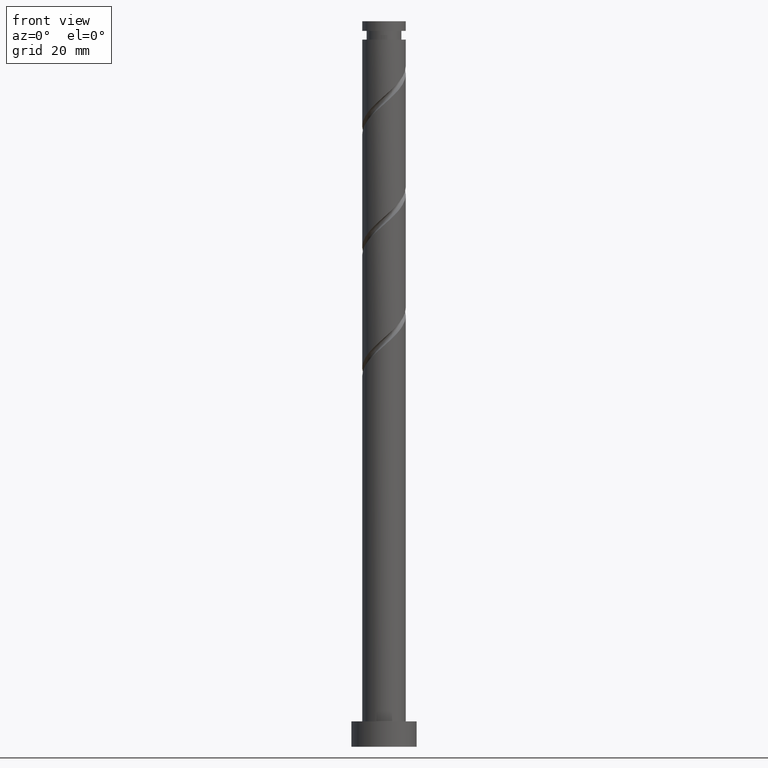
[diagram: clean part render]
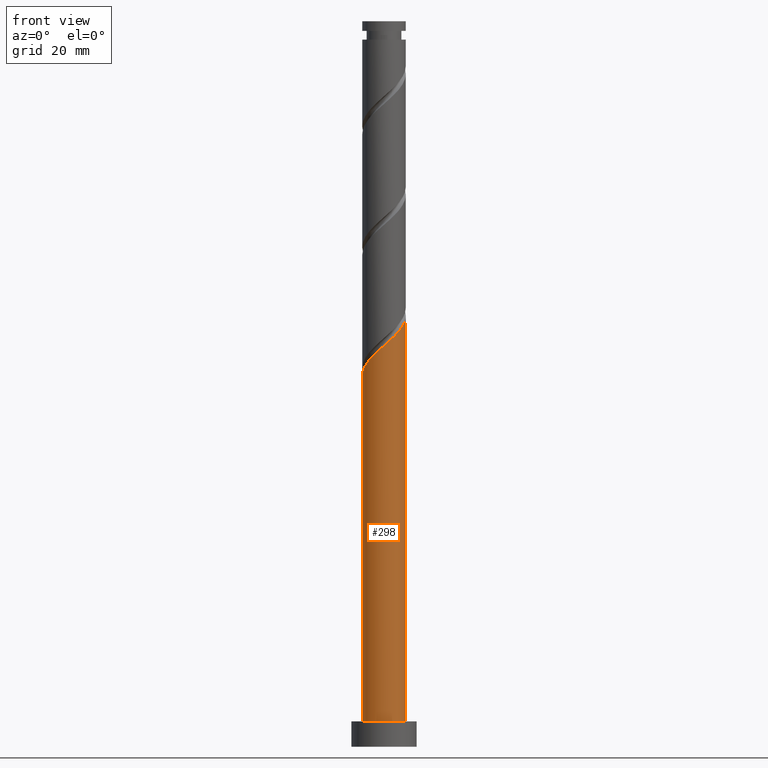
[diagram: same view with one face highlighted and labeled with its STEP entity id]
A machine part, front view. The second image highlights one B-rep face of the part: STEP entity #298.
In plain terms, the highlighted cylindrical surface (edge-blend (fillet) strip) has radius 6 mm, axis along (-0, -0, -1).
Its self-contained STEP definition (entity closure, byte-faithful):
#44 = CARTESIAN_POINT ( 'NONE',  ( 6.000000000000011546, -5.981513777448050751E-17, 118.8680557550443240 ) ) ;
#64 = DIRECTION ( 'NONE',  ( 1.000000000000000000, 0.000000000000000000, 0.000000000000000000 ) ) ;
#90 = CARTESIAN_POINT ( 'NONE',  ( -4.495236911988534700, -3.974021276376850764, 106.0427335213654914 ) ) ;
#126 = CARTESIAN_POINT ( 'NONE',  ( -6.000000000000010658, -0.6030226891555259261, 102.7348154575669099 ) ) ;
#130 = ORIENTED_EDGE ( 'NONE', *, *, #374, .T. ) ;
#152 = DIRECTION ( 'NONE',  ( -0.000000000000000000, -0.000000000000000000, -1.000000000000000000 ) ) ;
#153 = CARTESIAN_POINT ( 'NONE',  ( 6.000000000000000888, 7.347880794884120722E-16, 7.000000000000000000 ) ) ;
#160 = CIRCLE ( 'NONE', #1707, 6.000000000000000888 ) ;
#188 = FACE_OUTER_BOUND ( 'NONE', #1688, .T. ) ;
#269 = VECTOR ( 'NONE', #152, 1000.000000000000000 ) ;
#298 = ADVANCED_FACE ( 'NONE', ( #188 ), #1141, .T. ) ;
#340 = CARTESIAN_POINT ( 'NONE',  ( 6.000000000000012434, -0.1844517099460286080, 118.7048920670161891 ) ) ;
#373 = AXIS2_PLACEMENT_3D ( 'NONE', #458, #466, #978 ) ;
#374 = EDGE_CURVE ( 'NONE', #820, #1596, #473, .T. ) ;
#392 = CARTESIAN_POINT ( 'NONE',  ( 6.000000000000011546, -5.981513777448050751E-17, 118.8680557550443240 ) ) ;
#401 = CARTESIAN_POINT ( 'NONE',  ( 2.675156860004169967, -5.370617820546605081, 112.9871779658099342 ) ) ;
#458 = CARTESIAN_POINT ( 'NONE',  ( 0.000000000000000000, 0.000000000000000000, 200.0000000000000000 ) ) ;
#466 = DIRECTION ( 'NONE',  ( -0.000000000000000000, -0.000000000000000000, -1.000000000000000000 ) ) ;
#473 = LINE ( 'NONE', #1164, #911 ) ;
#480 = EDGE_CURVE ( 'NONE', #820, #1710, #674, .T. ) ;
#488 = CARTESIAN_POINT ( 'NONE',  ( 1.968101610341834062, -5.722808902604208825, 112.2927335213654771 ) ) ;
#495 = CARTESIAN_POINT ( 'NONE',  ( 5.689221836516481723, -1.905978723623160231, 117.1538446324766340 ) ) ;
#526 = CARTESIAN_POINT ( 'NONE',  ( 0.4198682387140550976, -6.037191097395812278, 110.9038446324765630 ) ) ;
#530 = EDGE_CURVE ( 'NONE', #1596, #830, #160, .T. ) ;
#624 = CARTESIAN_POINT ( 'NONE',  ( -3.313513036608688456, -5.002062710145124491, 107.4316224102543913 ) ) ;
#656 = CARTESIAN_POINT ( 'NONE',  ( -3.972047085488073392, -4.565830443087193657, 106.7371779658099200 ) ) ;
#674 =( BOUNDED_CURVE ( )  B_SPLINE_CURVE ( 2, ( #1593, #126, #796, #1341, #1421, #1552, #90, #656, #624, #745, #1744, #1676, #735, #526, #1073, #488, #401, #1544, #946, #1481, #1169, #724, #495, #1278, #1305, #340, #392 ),
 .UNSPECIFIED., .F., .T. ) 
 B_SPLINE_CURVE_WITH_KNOTS ( ( 3, 2, 2, 2, 2, 2, 2, 2, 2, 2, 2, 2, 2, 3 ),
 ( 0.05453176698144629464, 0.06250000000000000000, 0.07291666666666662966, 0.08333333333333337034, 0.09375000000000000000, 0.1041666666666666297, 0.1145833333333333703, 0.1250000000000000000, 0.1354166666666666297, 0.1458333333333333703, 0.1562500000000000000, 0.1666666666666666297, 0.1770833333333333703, 0.1795317669814465444 ),
 .UNSPECIFIED. ) 
 CURVE ( )  GEOMETRIC_REPRESENTATION_ITEM ( )  RATIONAL_B_SPLINE_CURVE ( ( 0.9062941362546419466, 0.9031415850403462509, 0.9090909090909216062, 0.9013135103398400849, 0.9090909090909216062, 0.9013135103398400849, 0.9090909090909216062, 0.9013135103398400849, 0.9090909090909216062, 0.9013135103398400849, 0.9090909090909216062, 0.9013135103398400849, 0.9090909090909216062, 0.9013135103398400849, 0.9090909090909216062, 0.9013135103398400849, 0.9090909090909216062, 0.9013135103398400849, 0.9090909090909216062, 0.9013135103398400849, 0.9090909090909216062, 0.9013135103398400849, 0.9090909090909216062, 0.9013135103398400849, 0.9090909090909216062, 0.9072628343904151071, 0.9062941362546416135 ) ) 
 REPRESENTATION_ITEM ( '' )  );
#685 = EDGE_CURVE ( 'NONE', #1710, #830, #1255, .T. ) ;
#724 = CARTESIAN_POINT ( 'NONE',  ( 5.438294977203054437, -2.654978987729305295, 116.4594001880321770 ) ) ;
#735 = CARTESIAN_POINT ( 'NONE',  ( -0.3685551104014787582, -5.988669896612860200, 110.2094001880321628 ) ) ;
#745 = CARTESIAN_POINT ( 'NONE',  ( -2.654978987729304407, -5.438294977203055325, 108.1260668546988200 ) ) ;
#748 = DIRECTION ( 'NONE',  ( -0.000000000000000000, -0.000000000000000000, -1.000000000000000000 ) ) ;
#757 = ORIENTED_EDGE ( 'NONE', *, *, #530, .T. ) ;
#796 = CARTESIAN_POINT ( 'NONE',  ( -5.880000000000010552, -1.193984924527946134, 103.2649557435877057 ) ) ;
#820 = VERTEX_POINT ( 'NONE', #954 ) ;
#830 = VERTEX_POINT ( 'NONE', #153 ) ;
#834 = CARTESIAN_POINT ( 'NONE',  ( 6.000000000000000888, 7.347880794884120722E-16, 200.0000000000000000 ) ) ;
#885 = CARTESIAN_POINT ( 'NONE',  ( 0.000000000000000000, 0.000000000000000000, 7.000000000000000000 ) ) ;
#911 = VECTOR ( 'NONE', #748, 1000.000000000000000 ) ;
#933 = ORIENTED_EDGE ( 'NONE', *, *, #685, .F. ) ;
#946 = CARTESIAN_POINT ( 'NONE',  ( 3.974021276376850764, -4.495236911988536477, 114.3760668546988057 ) ) ;
#954 = CARTESIAN_POINT ( 'NONE',  ( -6.000000000000011546, -3.828168817566752480E-15, 102.2013890883776526 ) ) ;
#978 = DIRECTION ( 'NONE',  ( -1.000000000000000000, 0.000000000000000000, 0.000000000000000000 ) ) ;
#1009 = DIRECTION ( 'NONE',  ( 0.000000000000000000, 0.000000000000000000, 1.000000000000000000 ) ) ;
#1073 = CARTESIAN_POINT ( 'NONE',  ( 1.193984924527945912, -5.880000000000010552, 111.5982890769210343 ) ) ;
#1141 = CYLINDRICAL_SURFACE ( 'NONE', #373, 6.000000000000000888 ) ;
#1164 = CARTESIAN_POINT ( 'NONE',  ( -6.000000000000000888, 0.000000000000000000, 200.0000000000000000 ) ) ;
#1169 = CARTESIAN_POINT ( 'NONE',  ( 5.002062710145122715, -3.313513036608690232, 115.7649557435877199 ) ) ;
#1255 = LINE ( 'NONE', #834, #269 ) ;
#1278 = CARTESIAN_POINT ( 'NONE',  ( 5.940148695829906345, -1.156978459517015390, 117.8482890769210485 ) ) ;
#1305 = CARTESIAN_POINT ( 'NONE',  ( 5.988669896612860200, -0.3685551104014818669, 118.5427335213654914 ) ) ;
#1341 = CARTESIAN_POINT ( 'NONE',  ( -5.722808902604208825, -1.968101610341834284, 103.9594001880321485 ) ) ;
#1421 = CARTESIAN_POINT ( 'NONE',  ( -5.370617820546604193, -2.675156860004169967, 104.6538446324766056 ) ) ;
#1481 = CARTESIAN_POINT ( 'NONE',  ( 4.565830443087193657, -3.972047085488073392, 115.0705112991432628 ) ) ;
#1544 = CARTESIAN_POINT ( 'NONE',  ( 3.382212109666505206, -5.018426738489001337, 113.6816224102543629 ) ) ;
#1552 = CARTESIAN_POINT ( 'NONE',  ( -5.018426738488997785, -3.382212109666507871, 105.3482890769210485 ) ) ;
#1584 = CARTESIAN_POINT ( 'NONE',  ( -6.000000000000000888, 0.000000000000000000, 7.000000000000000000 ) ) ;
#1593 = CARTESIAN_POINT ( 'NONE',  ( -6.000000000000011546, -3.828168817566752480E-15, 102.2013890883776526 ) ) ;
#1596 = VERTEX_POINT ( 'NONE', #1584 ) ;
#1676 = CARTESIAN_POINT ( 'NONE',  ( -1.156978459517012725, -5.940148695829906345, 109.5149557435877057 ) ) ;
#1688 = EDGE_LOOP ( 'NONE', ( #933, #1749, #130, #757 ) ) ;
#1707 = AXIS2_PLACEMENT_3D ( 'NONE', #885, #1009, #64 ) ;
#1710 = VERTEX_POINT ( 'NONE', #44 ) ;
#1744 = CARTESIAN_POINT ( 'NONE',  ( -1.905978723623160009, -5.689221836516481723, 108.8205112991432770 ) ) ;
#1749 = ORIENTED_EDGE ( 'NONE', *, *, #480, .F. ) ;